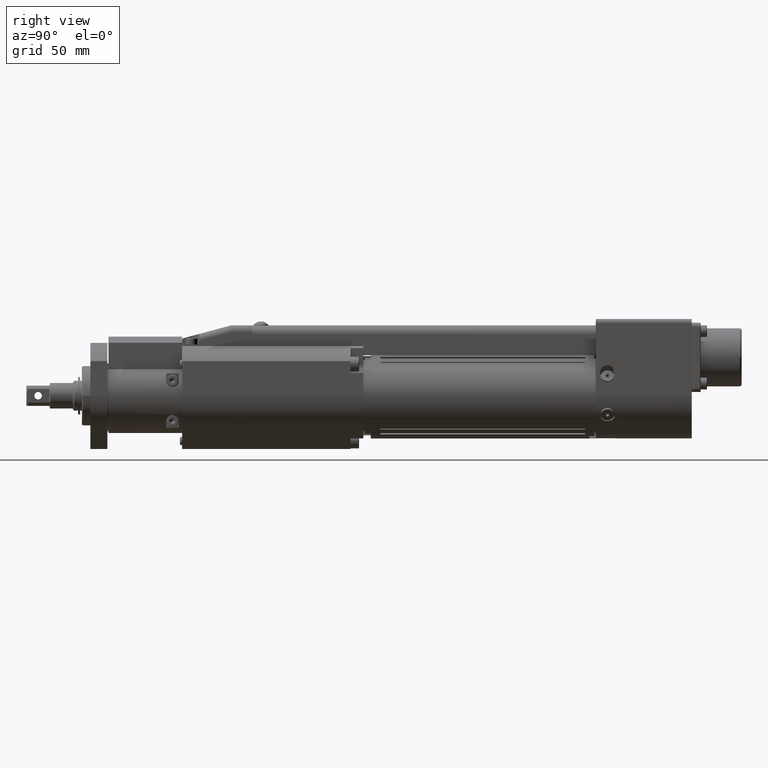
[diagram: clean part render]
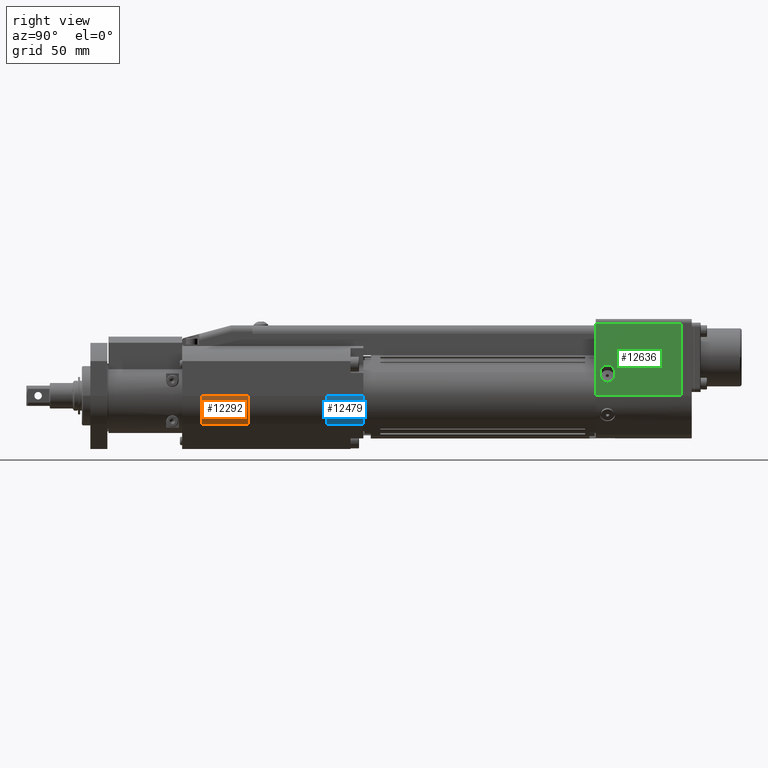
[diagram: same view with three faces highlighted in distinct colors, each labeled with its STEP entity id]
A machine part, right view with three faces highlighted in distinct colors.
Their STEP definitions:

[orange] entity #12292 — the highlighted cylindrical surface (partial cylindrical patch) has radius 19 mm, axis along (0, 1, -0).
#212=CYLINDRICAL_SURFACE('',#13141,19.);
#663=FACE_OUTER_BOUND('',#1382,.T.);
#1382=EDGE_LOOP('',(#8189,#8190,#8191,#8192,#8193));
#2173=CIRCLE('',#13125,19.);
#2179=CIRCLE('',#13142,19.);
#2180=CIRCLE('',#13143,19.);
#2799=LINE('',#19124,#3843);
#2800=LINE('',#19130,#3844);
#3843=VECTOR('',#14842,10.);
#3844=VECTOR('',#14849,10.);
#4940=VERTEX_POINT('',#19059);
#4941=VERTEX_POINT('',#19064);
#4959=VERTEX_POINT('',#19122);
#4960=VERTEX_POINT('',#19126);
#4961=VERTEX_POINT('',#19128);
#6155=EDGE_CURVE('',#4940,#4941,#2173,.T.);
#6186=EDGE_CURVE('',#4959,#4940,#2799,.T.);
#6187=EDGE_CURVE('',#4959,#4960,#2179,.T.);
#6188=EDGE_CURVE('',#4961,#4960,#2180,.T.);
#6189=EDGE_CURVE('',#4961,#4941,#2800,.T.);
#8189=ORIENTED_EDGE('',*,*,#6155,.F.);
#8190=ORIENTED_EDGE('',*,*,#6186,.F.);
#8191=ORIENTED_EDGE('',*,*,#6187,.T.);
#8192=ORIENTED_EDGE('',*,*,#6188,.F.);
#8193=ORIENTED_EDGE('',*,*,#6189,.T.);
#12292=ADVANCED_FACE('',(#663),#212,.T.);
#13125=AXIS2_PLACEMENT_3D('',#19065,#14785,#14786);
#13141=AXIS2_PLACEMENT_3D('',#19125,#14843,#14844);
#13142=AXIS2_PLACEMENT_3D('',#19127,#14845,#14846);
#13143=AXIS2_PLACEMENT_3D('',#19129,#14847,#14848);
#14785=DIRECTION('center_axis',(2.94787064516449E-46,1.,-2.22044604925031E-16));
#14786=DIRECTION('ref_axis',(-0.707106781186549,1.57009245868377E-16,0.707106781186546));
#14842=DIRECTION('',(2.94787064516449E-46,1.,-2.22044604925031E-16));
#14843=DIRECTION('center_axis',(2.94787064516449E-46,1.,-2.22044604925031E-16));
#14844=DIRECTION('ref_axis',(-0.707106781186549,1.57009245868377E-16,0.707106781186546));
#14845=DIRECTION('center_axis',(0.,1.,-2.22044604925031E-16));
#14846=DIRECTION('ref_axis',(1.,2.59493718822701E-32,1.1686558153949E-16));
#14847=DIRECTION('center_axis',(-2.94787064516449E-46,-1.,2.22044604925031E-16));
#14848=DIRECTION('ref_axis',(-0.707106781186549,1.57009245868377E-16,0.707106781186546));
#14849=DIRECTION('',(2.94787064516449E-46,1.,-2.22044604925031E-16));
#19059=CARTESIAN_POINT('',(19.,74.,2.3734781145428E-14));
#19064=CARTESIAN_POINT('',(13.4350288425444,74.,-13.4350288425444));
#19065=CARTESIAN_POINT('Origin',(1.98332912379618E-44,74.,-1.64313007644523E-14));
#19122=CARTESIAN_POINT('',(19.,52.,-9.32587340685132E-15));
#19124=CARTESIAN_POINT('',(19.,52.,2.86197624537787E-14));
#19125=CARTESIAN_POINT('Origin',(1.33479758185999E-44,52.,-1.15463194561016E-14));
#19126=CARTESIAN_POINT('',(13.4628388218117,52.,-13.4071611781883));
#19127=CARTESIAN_POINT('Origin',(0.,52.,-1.15463194561016E-14));
#19128=CARTESIAN_POINT('',(13.4350288425444,52.,-13.4350288425444));
#19129=CARTESIAN_POINT('Origin',(1.33479758185999E-44,52.,-1.15463194561016E-14));
#19130=CARTESIAN_POINT('',(13.4350288425444,52.,-13.4350288425444));

[blue] entity #12479 — the highlighted cylindrical surface (partial cylindrical patch) has radius 19 mm, axis along (-0, -1, 0).
#249=CYLINDRICAL_SURFACE('',#13448,19.);
#850=FACE_OUTER_BOUND('',#1587,.T.);
#1587=EDGE_LOOP('',(#9081,#9082,#9083,#9084,#9085));
#2164=CIRCLE('',#13111,19.);
#2172=CIRCLE('',#13124,19.);
#2293=CIRCLE('',#13449,19.);
#3098=LINE('',#20300,#4142);
#3101=LINE('',#20307,#4145);
#4142=VECTOR('',#15755,10.);
#4145=VECTOR('',#15762,10.);
#4926=VERTEX_POINT('',#19024);
#4927=VERTEX_POINT('',#19026);
#4939=VERTEX_POINT('',#19057);
#5285=VERTEX_POINT('',#20298);
#5287=VERTEX_POINT('',#20305);
#6136=EDGE_CURVE('',#4926,#4927,#2164,.T.);
#6154=EDGE_CURVE('',#4927,#4939,#2172,.T.);
#6671=EDGE_CURVE('',#5285,#4926,#3098,.T.);
#6674=EDGE_CURVE('',#5285,#5287,#2293,.T.);
#6675=EDGE_CURVE('',#5287,#4939,#3101,.T.);
#9081=ORIENTED_EDGE('',*,*,#6674,.T.);
#9082=ORIENTED_EDGE('',*,*,#6675,.T.);
#9083=ORIENTED_EDGE('',*,*,#6154,.F.);
#9084=ORIENTED_EDGE('',*,*,#6136,.F.);
#9085=ORIENTED_EDGE('',*,*,#6671,.F.);
#12479=ADVANCED_FACE('',(#850),#249,.T.);
#13111=AXIS2_PLACEMENT_3D('',#19027,#14747,#14748);
#13124=AXIS2_PLACEMENT_3D('',#19063,#14783,#14784);
#13448=AXIS2_PLACEMENT_3D('',#20304,#15758,#15759);
#13449=AXIS2_PLACEMENT_3D('',#20306,#15760,#15761);
#14747=DIRECTION('center_axis',(-1.41725500994103E-16,-1.,2.22044604925031E-16));
#14748=DIRECTION('ref_axis',(0.700326189827652,-2.57754618748188E-16,-0.713822966737189));
#14783=DIRECTION('center_axis',(-1.41725500994103E-16,-1.,2.22044604925031E-16));
#14784=DIRECTION('ref_axis',(0.700326189827652,-2.57754618748188E-16,-0.713822966737189));
#15755=DIRECTION('',(-1.41725500994103E-16,-1.,2.22044604925031E-16));
#15758=DIRECTION('center_axis',(-1.41725500994103E-16,-1.,2.22044604925031E-16));
#15759=DIRECTION('ref_axis',(0.700326189827652,-2.57754618748188E-16,-0.713822966737189));
#15760=DIRECTION('center_axis',(-1.41725500994103E-16,-1.,2.22044604925031E-16));
#15761=DIRECTION('ref_axis',(0.700326189827652,-2.57754618748188E-16,-0.713822966737189));
#15762=DIRECTION('',(-1.41725500994103E-16,-1.,2.22044604925031E-16));
#19024=CARTESIAN_POINT('',(13.3061976067326,111.,-13.5626363680032));
#19026=CARTESIAN_POINT('',(13.4350288425607,111.,-13.4350288425313));
#19027=CARTESIAN_POINT('Origin',(7.20719943637452E-12,111.,3.42252728606104E-12));
#19057=CARTESIAN_POINT('',(19.0000000000072,111.,1.05260454290986E-11));
#19063=CARTESIAN_POINT('Origin',(7.20719943637452E-12,111.,3.42252728606104E-12));
#20298=CARTESIAN_POINT('',(13.3061976067326,128.,-13.5626363680032));
#20300=CARTESIAN_POINT('',(13.3061976067326,128.,-13.5626363680032));
#20304=CARTESIAN_POINT('Origin',(7.20960876989142E-12,128.,3.41875252777731E-12));
#20305=CARTESIAN_POINT('',(19.0000000000072,128.,1.05222706708149E-11));
#20306=CARTESIAN_POINT('Origin',(7.20960876989142E-12,128.,3.41875252777731E-12));
#20307=CARTESIAN_POINT('',(19.0000000000072,128.,1.05222706708149E-11));

[green] entity #12636 — the highlighted planar face has unit normal (1, -0, -0).
#25=ELLIPSE('',#13717,4.04145188432738,3.5);
#479=FACE_BOUND('',#1751,.T.);
#1007=FACE_OUTER_BOUND('',#1750,.T.);
#1750=EDGE_LOOP('',(#9828,#9829,#9830,#9831));
#1751=EDGE_LOOP('',(#9832));
#2626=LINE('',#17800,#3670);
#3394=LINE('',#21109,#4438);
#3395=LINE('',#21113,#4439);
#3396=LINE('',#21114,#4440);
#3670=VECTOR('',#14235,10.);
#4438=VECTOR('',#16585,10.);
#4439=VECTOR('',#16590,10.);
#4440=VECTOR('',#16591,10.);
#4728=VERTEX_POINT('',#17797);
#4729=VERTEX_POINT('',#17799);
#5531=VERTEX_POINT('',#21108);
#5532=VERTEX_POINT('',#21112);
#5533=VERTEX_POINT('',#21115);
#5852=EDGE_CURVE('',#4728,#4729,#2626,.T.);
#7077=EDGE_CURVE('',#4729,#5531,#3394,.T.);
#7079=EDGE_CURVE('',#4728,#5532,#3395,.T.);
#7080=EDGE_CURVE('',#5531,#5532,#3396,.T.);
#7081=EDGE_CURVE('',#5533,#5533,#25,.T.);
#9828=ORIENTED_EDGE('',*,*,#5852,.F.);
#9829=ORIENTED_EDGE('',*,*,#7079,.T.);
#9830=ORIENTED_EDGE('',*,*,#7080,.F.);
#9831=ORIENTED_EDGE('',*,*,#7077,.F.);
#9832=ORIENTED_EDGE('',*,*,#7081,.T.);
#11339=PLANE('',#13716);
#12636=ADVANCED_FACE('',(#1007,#479),#11339,.T.);
#13716=AXIS2_PLACEMENT_3D('',#21111,#16588,#16589);
#13717=AXIS2_PLACEMENT_3D('',#21116,#16592,#16593);
#14235=DIRECTION('',(1.23155097231375E-11,2.50110778298344E-16,1.));
#16585=DIRECTION('',(4.90546703537902E-16,1.,-2.50110778304385E-16));
#16588=DIRECTION('center_axis',(1.,-4.90546703540983E-16,-1.23155097231375E-11));
#16589=DIRECTION('ref_axis',(-1.23155097231375E-11,-2.50110778298344E-16,
-1.));
#16590=DIRECTION('',(4.90546703537902E-16,1.,-2.50110778304385E-16));
#16591=DIRECTION('',(-1.23155097231375E-11,-2.50110778298344E-16,-1.));
#16592=DIRECTION('center_axis',(-1.,4.90546703540983E-16,1.23155097231375E-11));
#16593=DIRECTION('ref_axis',(-1.23155097231375E-11,-2.50110778298344E-16,
-1.));
#17797=CARTESIAN_POINT('',(17.9999999999424,237.,-2.3324408657662E-10));
#17799=CARTESIAN_POINT('',(18.0000000003612,237.,33.9999999997668));
#17800=CARTESIAN_POINT('',(17.9999999999424,237.,-2.3324408657662E-10));
#21108=CARTESIAN_POINT('',(18.0000000003612,277.,33.9999999997668));
#21109=CARTESIAN_POINT('',(18.0000000003612,237.,33.9999999997668));
#21111=CARTESIAN_POINT('Origin',(18.0000000003612,237.,33.9999999997668));
#21112=CARTESIAN_POINT('',(17.9999999999425,277.,-2.33254091007752E-10));
#21113=CARTESIAN_POINT('',(17.9999999999424,237.,-2.3324408657662E-10));
#21114=CARTESIAN_POINT('',(17.9999999999425,277.,-2.33254091007752E-10));
#21115=CARTESIAN_POINT('',(18.0000000001202,242.5,14.4337567295599));
#21116=CARTESIAN_POINT('Origin',(18.0000000000704,242.5,10.3923048452325));